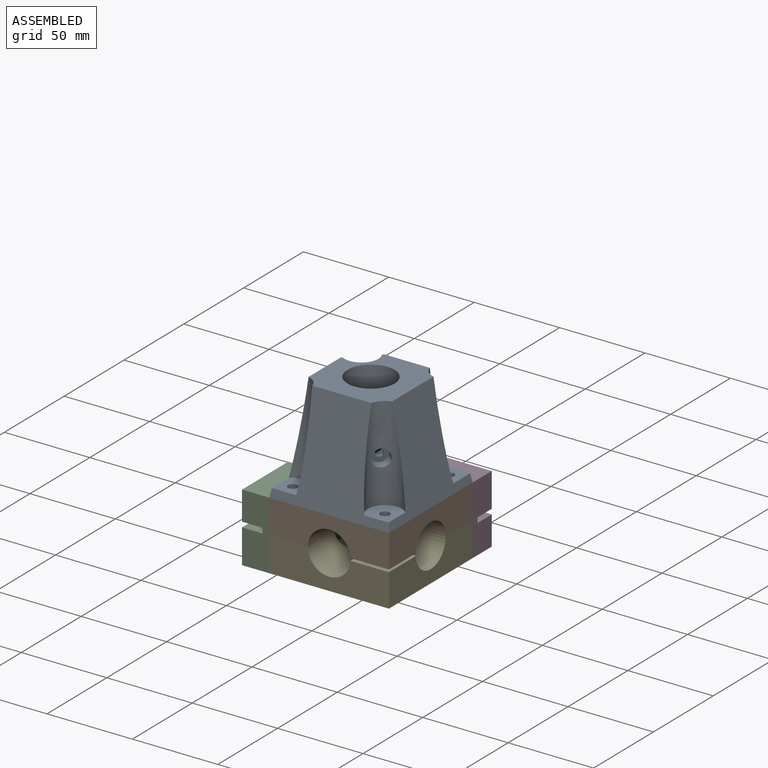
[diagram: assembled view]
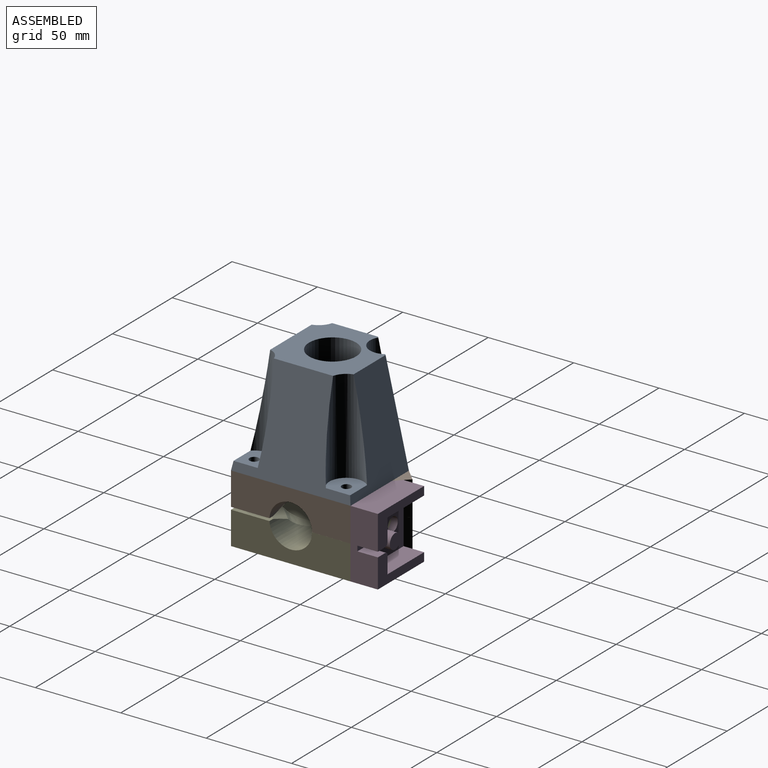
[diagram: assembled view, second angle]
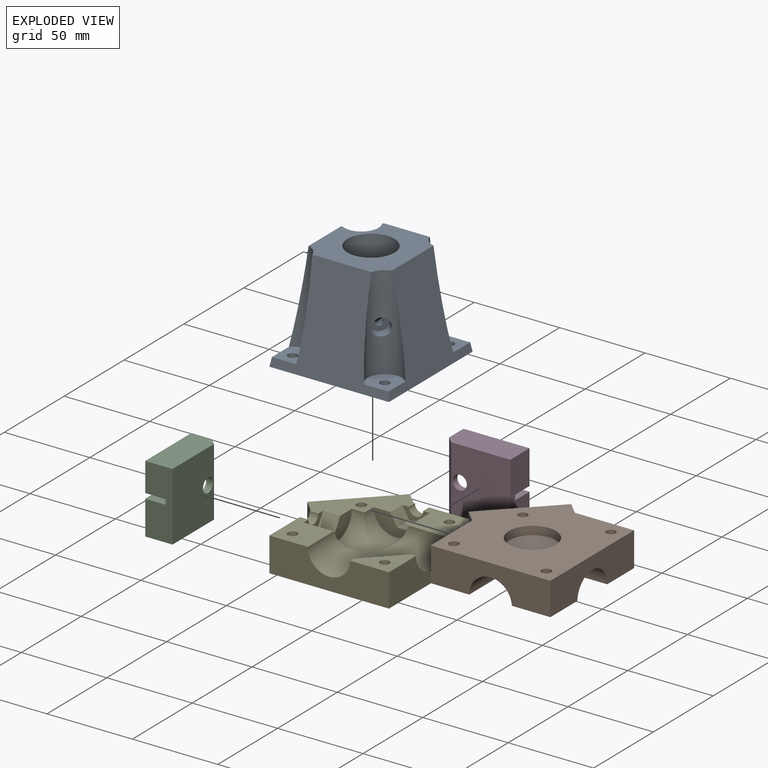
[diagram: exploded view]
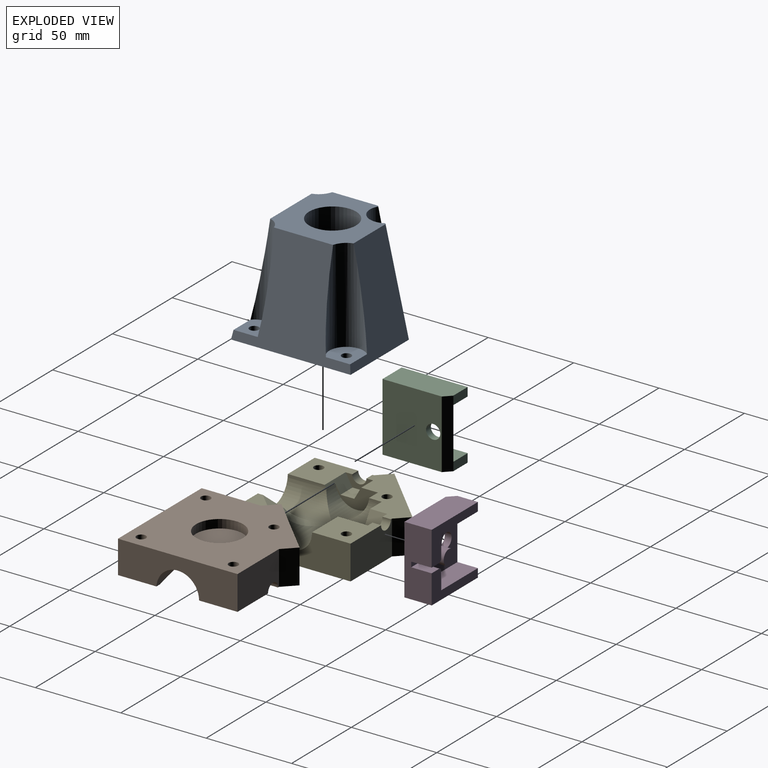
[diagram: exploded view, second angle]
ASSEMBLY  parts=5 mates=5
PART A: 34 faces, bbox 70x70x60 mm
  f0: cylinder r=13.75mm len=60mm, axis (0,0,1), area 5122.9mm2, adj f8,f9,f23,f24,f25,f26,f27,f28
  f1: cylinder r=10mm len=55mm, axis (0,0,-1), area 1046.6mm2, adj f3,f6,f8,f14,f30
  f2: cylinder r=10mm len=55mm, axis (0,0,-1), area 1976.5mm2, adj f5,f8,f17,f33
  f3: plane 70x60mm, normal (0,-0.98,-0.17), area 2328.9mm2, adj f1,f4,f6,f8,f9,f14,f16,f19
  f4: plane 60x48.79mm, normal (-0.98,0,-0.17), area 1870.9mm2, adj f3,f5,f8,f9,f19,f20,f21
  f5: plane 60x25.6mm, normal (-0.7,0.7,-0.17), area 522.9mm2, adj f2,f4,f7,f8,f9,f17
  f6: plane 70x60mm, normal (0.98,0,-0.17), area 2328.9mm2, adj f1,f3,f7,f8,f9,f10,f12,f13
  f7: plane 60x48.79mm, normal (0,0.98,-0.17), area 1870.9mm2, adj f5,f6,f8,f9,f10,f12,f13
  f8: plane 48.84x48.84mm, normal (0,0,-1), area 1470.1mm2, adj f0,f1,f2,f3,f4,f5,f6,f7
  f9: plane 70x70mm, normal (0,0,1), area 3986mm2, adj f0,f3,f4,f5,f6,f7,f11,f15
  f10: cylinder r=10mm len=55mm, axis (0,0,-1), area 1127.9mm2, adj f6,f7,f8,f12
  f11: cylinder r=2.75mm len=5.5mm, axis (0,0,-1), area 86.4mm2, adj f9,f12
  f12: plane 17.12x17.12mm, normal (0,0,-1), area 234.7mm2, adj f6,f7,f10,f11,f13
  f13: cylinder r=10mm len=0.27mm, axis (0,0,-1), area 0mm2, adj f6,f7,f12
  f14: plane 17.12x17.12mm, normal (0,0,-1), area 234.7mm2, adj f1,f3,f6,f15,f16
  f15: cylinder r=2.75mm len=5.5mm, axis (0,0,-1), area 86.4mm2, adj f9,f14
  f16: cylinder r=10mm len=0.27mm, axis (0,0,-1), area 0mm2, adj f3,f6,f14
  f17: plane 20x20mm, normal (0,0,-1), area 262.5mm2, adj f2,f5,f18
  f18: cylinder r=2.75mm len=5.5mm, axis (0,0,-1), area 86.4mm2, adj f9,f17
  f19: plane 17.12x17.12mm, normal (0,0,-1), area 234.7mm2, adj f3,f4,f20,f21,f22
  f20: cylinder r=10mm len=55mm, axis (0,0,-1), area 1127.9mm2, adj f3,f4,f8,f19
  f21: cylinder r=10mm len=0.27mm, axis (0,0,-1), area 0mm2, adj f3,f4,f19
  f22: cylinder r=2.75mm len=5.5mm, axis (0,0,-1), area 86.4mm2, adj f9,f19
  f23: plane 7.32x6.98mm, normal (0.35,0.35,-0.87), area 26.6mm2, adj f0,f24,f28,f29
  f24: plane 4.76x4.76mm, normal (0.71,0.71,0), area 28mm2, adj f0,f23,f25,f29
  f25: plane 7.32x6.98mm, normal (0.35,0.35,0.87), area 26.6mm2, adj f0,f24,f26,f29
  f26: plane 7.32x6.98mm, normal (-0.35,-0.35,0.87), area 26.6mm2, adj f0,f25,f27,f29
  f27: plane 4.76x4.76mm, normal (-0.71,-0.71,0), area 28mm2, adj f0,f26,f28,f29
  f28: plane 7.32x6.98mm, normal (-0.35,-0.35,-0.87), area 26.6mm2, adj f0,f23,f27,f29
  f29: plane 8.31x5.09mm, normal (-0.71,0.71,0), area 29.7mm2, adj f23,f24,f25,f26,f27,f28,f32
  f30: cylinder r=5mm len=12.26mm, axis (0.71,-0.71,0), area 209.2mm2, adj f1,f31
  f31: plane 10x7.07mm, normal (0.71,-0.71,0), area 63.3mm2, adj f30,f32
  f32: cylinder r=2.2mm len=4.66mm, axis (0.71,-0.71,0), area 30.2mm2, adj f29,f31
  f33: cylinder r=2.2mm len=5.35mm, axis (0.71,-0.71,0), area 40.9mm2, adj f0,f2
PART B: 36 faces, bbox 77.1x77.1x20 mm
  f0: cylinder r=12.5mm len=35mm, axis (0,-1,0), area 907.3mm2, adj f1,f15,f23,f25,f27,f28,f35
  f1: cylinder r=12.5mm len=24.86mm, axis (1,0,0), area 515.4mm2, adj f0,f2,f5,f15,f34
  f2: plane 24.86x12.5mm, normal (1,0,0), area 161.4mm2, adj f1,f15,f16,f29,f34
  f3: cylinder r=12.5mm len=35mm, axis (1,0,0), area 907.3mm2, adj f5,f11,f22,f25,f27,f28,f33
  f4: plane 24.86x12.5mm, normal (0,-1,0), area 161.4mm2, adj f5,f11,f12,f26,f34
  f5: cylinder r=12.5mm len=24.86mm, axis (0,-1,0), area 515.4mm2, adj f1,f3,f4,f11,f34
  f6: plane 35.36x35.36mm, normal (-0.71,0.71,0), area 999.7mm2, adj f7,f10,f24,f34
  f7: plane 20x7.07mm, normal (-0.71,-0.71,0), area 200mm2, adj f6,f8,f24,f34
  f8: plane 34.64x20mm, normal (-1,0,0), area 665.7mm2, adj f7,f18,f23,f24,f34,f35
  f9: plane 34.64x20mm, normal (0,1,0), area 665.7mm2, adj f10,f14,f22,f24,f33,f34
  f10: plane 20x7.07mm, normal (0.71,0.71,0), area 200mm2, adj f6,f9,f24,f34
  f11: plane 17.64x7mm, normal (-0.87,0,0.5), area 97mm2, adj f3,f4,f5,f13,f26,f33
  f12: plane 10x7mm, normal (0.87,0,0.5), area 80.8mm2, adj f4,f13,f26,f34
  f13: plane 16.16x7mm, normal (0,-1,0), area 57.8mm2, adj f11,f12,f14,f26,f33,f34
  f14: cylinder r=4.15mm len=8.3mm, axis (0,-1,0), area 65.1mm2, adj f9,f13,f33,f34
  f15: plane 17.64x7mm, normal (0,0.87,0.5), area 97mm2, adj f0,f1,f2,f17,f29,f35
  f16: plane 10x7mm, normal (0,-0.87,0.5), area 80.8mm2, adj f2,f17,f29,f34
  f17: plane 16.16x7mm, normal (1,0,0), area 57.8mm2, adj f15,f16,f18,f29,f34,f35
  f18: cylinder r=4.15mm len=8.3mm, axis (1,0,0), area 65.1mm2, adj f8,f17,f34,f35
  f19: cylinder r=2.75mm len=20mm, axis (0,0,-1), area 345.5mm2, adj f24,f35
  f20: cylinder r=2.75mm len=20mm, axis (0,0,-1), area 345.5mm2, adj f24,f34
  f21: cylinder r=2.75mm len=20mm, axis (0,0,-1), area 345.5mm2, adj f24,f33
  f22: plane 70x20mm, normal (1,0,0), area 1137.6mm2, adj f3,f9,f23,f24,f25,f33
  f23: plane 70x20mm, normal (0,-1,0), area 1137.6mm2, adj f0,f8,f22,f24,f25,f35
  f24: plane 77.07x77.07mm, normal (0,0,-1), area 4086mm2, adj f6,f7,f8,f9,f10,f19,f20,f21
  f25: plane 22.52x22.52mm, normal (0,0,1), area 291.5mm2, adj f0,f3,f22,f23,f28,f32
  f26: plane 10x8.08mm, normal (0,0,1), area 80.8mm2, adj f4,f11,f12,f13
  f27: bspline ~21.99x21.99mm, area 104.5mm2, adj f0,f3,f28
  f28: bspline ~27.69x27.69mm, area 195.3mm2, adj f0,f3,f25,f27
  f29: plane 10x8.08mm, normal (0,0,1), area 80.8mm2, adj f2,f15,f16,f17
  f30: cylinder r=13.75mm len=27.5mm, axis (0,0,-1), area 432mm2, adj f24,f31
  f31: plane 27.5x27.5mm, normal (0,0,-1), area 594mm2, adj f30
  f32: cylinder r=2.75mm len=19.25mm, axis (0,0,-1), area 332.6mm2, adj f24,f25
  f33: plane 25.49x22.5mm, normal (0,0,1), area 481.1mm2, adj f3,f9,f11,f13,f14,f21,f22
  f34: plane 43.28x43.28mm, normal (0,0,1), area 690.1mm2, adj f1,f2,f4,f5,f6,f7,f8,f9
  f35: plane 25.49x22.5mm, normal (0,0,1), area 481.1mm2, adj f0,f8,f15,f17,f18,f19,f23
PART C: 21 faces, bbox 38.6x16x40 mm
  f0: plane 38.64x30mm, normal (0,1,0), area 831.2mm2, adj f2,f3,f6,f7,f8,f10,f12,f13
  f1: plane 38.64x16mm, normal (0,0,-1), area 610.3mm2, adj f2,f3,f4,f15,f16
  f2: plane 40x16mm, normal (1,0,0), area 604mm2, adj f0,f1,f4,f5,f10,f11,f14,f16
  f3: plane 40x4mm, normal (-0.71,-0.71,0), area 226.3mm2, adj f0,f1,f4,f5,f9,f15
  f4: plane 40x34.64mm, normal (0,-1,0), area 1331.7mm2, adj f1,f2,f3,f5,f6
  f5: plane 38.64x16mm, normal (0,0,1), area 610.3mm2, adj f2,f3,f4,f9,f11
  f6: cylinder r=4.15mm len=8.3mm, axis (0,-1,0), area 104.3mm2, adj f0,f4
  f7: plane 13x12mm, normal (-1,0,0), area 156mm2, adj f0,f8,f11,f20
  f8: plane 30.64x12mm, normal (0,0,-1), area 367.7mm2, adj f0,f7,f9,f11
  f9: plane 12x5mm, normal (-1,0,0), area 60mm2, adj f3,f5,f8,f11
  f10: plane 12x6mm, normal (0,0,-1), area 72mm2, adj f0,f2,f11,f20
  f11: plane 38.64x20mm, normal (0,1,0), area 312.4mm2, adj f2,f5,f7,f8,f9,f10,f20
  f12: plane 30.64x12mm, normal (0,0,1), area 367.7mm2, adj f0,f13,f15,f16
  f13: plane 12x10mm, normal (-1,0,0), area 120mm2, adj f0,f12,f16,f19
  f14: plane 12x6mm, normal (0,0,1), area 72mm2, adj f0,f2,f16,f19
  f15: plane 12x5mm, normal (-1,0,0), area 60mm2, adj f1,f3,f12,f16
  f16: plane 38.64x17mm, normal (0,1,0), area 288.4mm2, adj f1,f2,f12,f13,f14,f15,f19
  f17: cylinder r=4.36mm len=12mm, axis (0,-1,0), area 328.9mm2, adj f0,f18
  f18: plane 8.72x8.72mm, normal (0,1,0), area 59.8mm2, adj f17
  f19: cylinder r=2mm len=12mm, axis (0,-1,0), area 37.7mm2, adj f0,f13,f14,f16
  f20: cylinder r=2mm len=12mm, axis (0,-1,0), area 37.7mm2, adj f0,f7,f10,f11
PART D: same geometry as C
PART E: 34 faces, bbox 77.1x77.1x20 mm
  f0: cylinder r=2.75mm len=19.25mm, axis (0,0,-1), area 332.6mm2, adj f3,f29
  f1: bspline ~21.99x21.99mm, area 104.5mm2, adj f2,f21,f24
  f2: bspline ~27.69x27.69mm, area 195.3mm2, adj f1,f3,f21,f24
  f3: plane 22.52x22.52mm, normal (0,0,-1), area 291.5mm2, adj f0,f2,f21,f24,f25,f26
  f4: plane 10x8.08mm, normal (0,0,-1), area 80.8mm2, adj f8,f9,f10,f20
  f5: plane 10x8.08mm, normal (0,0,-1), area 80.8mm2, adj f13,f14,f15,f22
  f6: plane 20x7.07mm, normal (0.71,0.71,0), area 200mm2, adj f11,f18,f29,f32
  f7: cylinder r=4.15mm len=8.3mm, axis (0,-1,0), area 65.1mm2, adj f8,f11,f31,f32
  f8: plane 16.16x7mm, normal (0,-1,0), area 57.8mm2, adj f4,f7,f9,f10,f31,f32
  f9: plane 10x7mm, normal (0.87,0,-0.5), area 80.8mm2, adj f4,f8,f20,f32
  f10: plane 17.64x7mm, normal (-0.87,0,-0.5), area 97mm2, adj f4,f8,f19,f20,f21,f31
  f11: plane 34.64x20mm, normal (0,1,0), area 665.7mm2, adj f6,f7,f26,f29,f31,f32
  f12: cylinder r=4.15mm len=8.3mm, axis (1,0,0), area 65.1mm2, adj f13,f16,f32,f33
  f13: plane 16.16x7mm, normal (1,0,0), area 57.8mm2, adj f5,f12,f14,f15,f32,f33
  f14: plane 10x7mm, normal (0,-0.87,-0.5), area 80.8mm2, adj f5,f13,f22,f32
  f15: plane 17.64x7mm, normal (0,0.87,-0.5), area 97mm2, adj f5,f13,f22,f23,f24,f33
  f16: plane 34.64x20mm, normal (-1,0,0), area 665.7mm2, adj f12,f17,f25,f29,f32,f33
  f17: plane 20x7.07mm, normal (-0.71,-0.71,0), area 200mm2, adj f16,f18,f29,f32
  f18: plane 35.36x35.36mm, normal (-0.71,0.71,0), area 999.7mm2, adj f6,f17,f29,f32
  f19: cylinder r=12.5mm len=24.86mm, axis (0,-1,0), area 515.4mm2, adj f10,f20,f21,f23,f32
  f20: plane 24.86x12.5mm, normal (0,-1,0), area 161.4mm2, adj f4,f9,f10,f19,f32
  f21: cylinder r=12.5mm len=35mm, axis (1,0,0), area 907.3mm2, adj f1,f2,f3,f10,f19,f26,f31
  f22: plane 24.86x12.5mm, normal (1,0,0), area 161.4mm2, adj f5,f14,f15,f23,f32
  f23: cylinder r=12.5mm len=24.86mm, axis (1,0,0), area 515.4mm2, adj f15,f19,f22,f24,f32
  f24: cylinder r=12.5mm len=35mm, axis (0,-1,0), area 907.3mm2, adj f1,f2,f3,f15,f23,f25,f33
  f25: plane 70x20mm, normal (0,-1,0), area 1137.6mm2, adj f3,f16,f24,f26,f29,f33
  f26: plane 70x20mm, normal (1,0,0), area 1137.6mm2, adj f3,f11,f21,f25,f29,f31
  f27: cylinder r=2.75mm len=20mm, axis (0,0,-1), area 345.5mm2, adj f29,f33
  f28: cylinder r=2.75mm len=20mm, axis (0,0,-1), area 345.5mm2, adj f29,f32
  f29: plane 77.07x77.07mm, normal (0,0,1), area 4680mm2, adj f0,f6,f11,f16,f17,f18,f25,f26
  f30: cylinder r=2.75mm len=20mm, axis (0,0,-1), area 345.5mm2, adj f29,f31
  f31: plane 25.49x22.5mm, normal (0,0,-1), area 481.1mm2, adj f7,f8,f10,f11,f21,f26,f30
  f32: plane 43.28x43.28mm, normal (0,0,-1), area 690.1mm2, adj f6,f7,f8,f9,f11,f12,f13,f14
  f33: plane 25.49x22.5mm, normal (0,0,-1), area 481.1mm2, adj f12,f13,f15,f16,f24,f25,f27
PLACE A rot(axis=(0.71,-0.71,0),180deg) t=(-116.2,-27.32,38.46)mm
PLACE B rot(axis=(0.71,-0.71,0),180deg) t=(-116.2,-27.32,38.46)mm
PLACE C rot(axis=(-0.71,0.71,0),180deg) t=(-116.2,-27.32,38.46)mm
PLACE D t=(-116.2,-27.32,-1.54)mm
PLACE E rot(axis=(-0.71,0.71,0),180deg) t=(-116.2,-27.32,38.46)mm
MATE fastened A.f9 <-> B.f24  axis (0,0,-1) through (-81.2,-27.32,38.46)mm
MATE fastened B.f18 <-> D.f6  axis (0,1,0) through (-110.84,7.68,18.46)mm
MATE slider B.f0 <-> E.f19  axis (1,0,0) through (-81.2,-27.32,18.46)mm
MATE fastened B.f14 <-> C.f6  axis (-1,0,0) through (-151.2,-32.67,18.46)mm
MATE slider E.f21 <-> B.f1  axis (0,-1,0) through (-116.2,-62.32,18.46)mm
